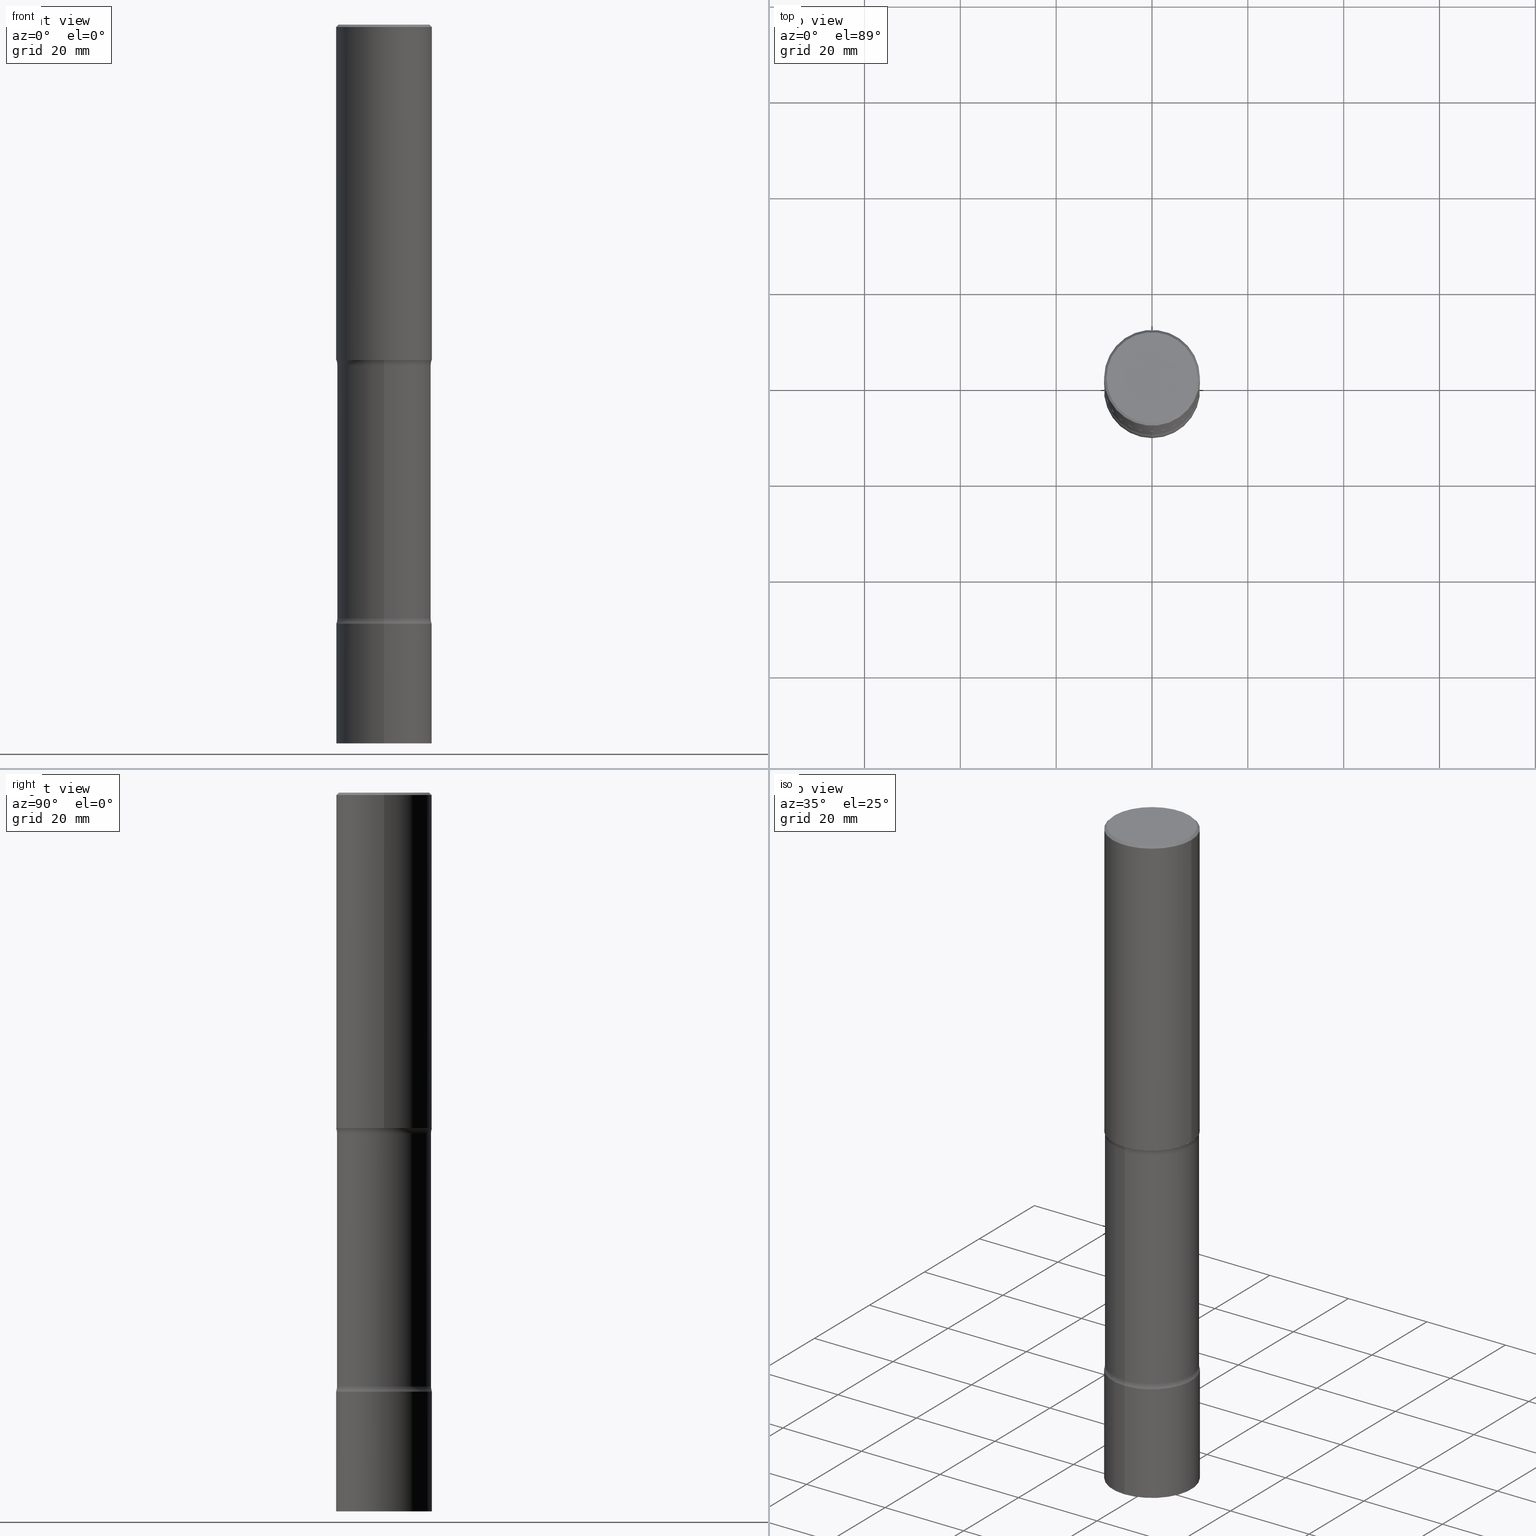
[diagram: canonical four-view strip — front | top / right | iso, engineering-drawing reading convention]
A machine part, canonical four-view strip (front | top / right | iso — engineering-drawing reading convention). The complete STEP part file that produces these views, byte-faithful:
ISO-10303-21;
HEADER;
FILE_DESCRIPTION (( 'STEP AP203' ),
    '1' );
FILE_NAME ('44566.STEP',
    '2024-03-11T13:34:38',
    ( '' ),
    ( '' ),
    'SwSTEP 2.0',
    'SolidWorks 2023',
    '' );
FILE_SCHEMA (( 'CONFIG_CONTROL_DESIGN' ));
ENDSEC;

DATA;
#1 = EDGE_LOOP ( 'NONE', ( #374, #477, #432, #218 ) ) ;
#2 = CC_DESIGN_PERSON_AND_ORGANIZATION_ASSIGNMENT ( #80, #114, ( #86 ) ) ;
#3 = APPROVAL_DATE_TIME ( #127, #139 ) ;
#4 = CARTESIAN_POINT ( 'NONE',  ( 6.498622885665502383E-29, -1.026532838434027819E-14, -2.798546805273080640 ) ) ;
#5 = CIRCLE ( 'NONE', #21, 0.3937000000000000499 ) ;
#6 = DIRECTION ( 'NONE',  ( 1.000000000000000000, -6.982962677686265922E-15, 4.876176775795935793E-29 ) ) ;
#7 = ORIENTED_EDGE ( 'NONE', *, *, #209, .F. ) ;
#8 = DIRECTION ( 'NONE',  ( 1.000000000000000000, -6.982962677686266711E-15, 4.876176775795935793E-29 ) ) ;
#9 = ADVANCED_FACE ( 'NONE', ( #100 ), #490, .T. ) ;
#10 = ORIENTED_EDGE ( 'NONE', *, *, #204, .F. ) ;
#11 = DIRECTION ( 'NONE',  ( -6.982962677686269077E-15, -1.000000000000000000, 0.000000000000000000 ) ) ;
#12 = VERTEX_POINT ( 'NONE', #443 ) ;
#13 = CARTESIAN_POINT ( 'NONE',  ( 1.444498222828701808E-28, -2.061426567174549713E-14, -5.905499999999999972 ) ) ;
#14 = AXIS2_PLACEMENT_3D ( 'NONE', #227, #375, #106 ) ;
#15 = AXIS2_PLACEMENT_3D ( 'NONE', #384, #501, #77 ) ;
#16 = ORIENTED_EDGE ( 'NONE', *, *, #271, .T. ) ;
#17 = ADVANCED_FACE ( 'NONE', ( #353 ), #342, .F. ) ;
#18 = FACE_OUTER_BOUND ( 'NONE', #102, .T. ) ;
#19 = CARTESIAN_POINT ( 'NONE',  ( -2.749192406204938461E-15, -0.3937000000000206446, -5.905499999999998195 ) ) ;
#20 = DIRECTION ( 'NONE',  ( -2.446021882700367248E-29, 3.490689301794175043E-15, 1.000000000000000000 ) ) ;
#21 = AXIS2_PLACEMENT_3D ( 'NONE', #327, #396, #398 ) ;
#22 = CIRCLE ( 'NONE', #89, 0.3937000000000000499 ) ;
#23 = DIRECTION ( 'NONE',  ( 2.609347592550137180E-29, -3.256797589367199475E-15, -1.000000000000000000 ) ) ;
#24 = EDGE_LOOP ( 'NONE', ( #157, #211, #506, #16 ) ) ;
#25 = CARTESIAN_POINT ( 'NONE',  ( 4.890937612370298557E-31, -6.982962677686327354E-17, -0.02000000000000010103 ) ) ;
#26 = EDGE_LOOP ( 'NONE', ( #394, #234, #361, #406 ) ) ;
#27 = PERSON_AND_ORGANIZATION ( #499, #366 ) ;
#28 = ORIENTED_EDGE ( 'NONE', *, *, #156, .F. ) ;
#29 = AXIS2_PLACEMENT_3D ( 'NONE', #281, #236, #162 ) ;
#30 = PERSON_AND_ORGANIZATION_ROLE ( 'design_owner' ) ;
#31 = FACE_OUTER_BOUND ( 'NONE', #205, .T. ) ;
#32 = APPLICATION_CONTEXT ( 'configuration controlled 3d designs of mechanical parts and assemblies' ) ;
#33 = CALENDAR_DATE ( 2024, 11, 3 ) ;
#34 = DIRECTION ( 'NONE',  ( 1.000000000000000000, -6.982962677686267499E-15, 0.000000000000000000 ) ) ;
#35 = PERSON_AND_ORGANIZATION ( #499, #366 ) ;
#36 = CARTESIAN_POINT ( 'NONE',  ( -3.507086576460688955E-15, -0.5112000000000173072, -4.878553194726919173 ) ) ;
#37 = ORIENTED_EDGE ( 'NONE', *, *, #60, .F. ) ;
#38 = AXIS2_PLACEMENT_3D ( 'NONE', #256, #292, #6 ) ;
#39 = CC_DESIGN_SECURITY_CLASSIFICATION ( #153, ( #299 ) ) ;
#40 =( CONVERSION_BASED_UNIT ( 'INCH', #194 ) LENGTH_UNIT ( ) NAMED_UNIT ( #427 ) );
#41 = DIRECTION ( 'NONE',  ( 6.982962677686265922E-15, 1.000000000000000000, -2.775563112689112751E-15 ) ) ;
#42 = PRODUCT_RELATED_PRODUCT_CATEGORY ( 'detail', '', ( #290 ) ) ;
#43 = VERTEX_POINT ( 'NONE', #200 ) ;
#44 = CARTESIAN_POINT ( 'NONE',  ( 6.739467482965615990E-29, -9.622173421717821235E-15, -2.755899999999998684 ) ) ;
#45 = EDGE_CURVE ( 'NONE', #454, #265, #128, .T. ) ;
#46 = DIRECTION ( 'NONE',  ( -2.446021882700367248E-29, 3.490689301794175043E-15, 1.000000000000000000 ) ) ;
#47 = VECTOR ( 'NONE', #217, 39.37007874015748143 ) ;
#48 = ADVANCED_FACE ( 'NONE', ( #497 ), #505, .T. ) ;
#49 = DIRECTION ( 'NONE',  ( 2.609347592550137180E-29, -3.256797589367199475E-15, -1.000000000000000000 ) ) ;
#50 = CC_DESIGN_APPROVAL ( #139, ( #153 ) ) ;
#51 = ORIENTED_EDGE ( 'NONE', *, *, #393, .T. ) ;
#52 = CARTESIAN_POINT ( 'NONE',  ( 4.890937612370298557E-31, -6.982962677686327354E-17, -0.02000000000000010103 ) ) ;
#53 = EDGE_LOOP ( 'NONE', ( #365, #287, #330, #87 ) ) ;
#54 = DIRECTION ( 'NONE',  ( -2.445468806185136597E-29, 3.491481338843145583E-15, 1.000000000000000000 ) ) ;
#55 = ORIENTED_EDGE ( 'NONE', *, *, #190, .T. ) ;
#56 = CARTESIAN_POINT ( 'NONE',  ( 3.569690520833339777E-15, 0.5111999999999831124, -4.878553194726922726 ) ) ;
#57 = AXIS2_PLACEMENT_3D ( 'NONE', #424, #395, #41 ) ;
#58 = LOCAL_TIME ( 9, 34, 38.00000000000000000, #421 ) ;
#59 = AXIS2_PLACEMENT_3D ( 'NONE', #255, #182, #295 ) ;
#60 = EDGE_CURVE ( 'NONE', #132, #378, #108, .T. ) ;
#61 = EDGE_CURVE ( 'NONE', #265, #454, #409, .T. ) ;
#62 = DIRECTION ( 'NONE',  ( 2.609347592550136619E-29, -3.256797589367199475E-15, -1.000000000000000000 ) ) ;
#63 = CARTESIAN_POINT ( 'NONE',  ( 0.000000000000000000, 0.000000000000000000, 0.000000000000000000 ) ) ;
#64 = ADVANCED_BREP_SHAPE_REPRESENTATION ( '44566', ( #354, #357, #199, #485 ), #503 ) ;
#65 = DIRECTION ( 'NONE',  ( 6.982962677686265922E-15, 1.000000000000000000, -3.256797589367199475E-15 ) ) ;
#66 = CC_DESIGN_PERSON_AND_ORGANIZATION_ASSIGNMENT ( #76, #344, ( #299 ) ) ;
#67 = ORIENTED_EDGE ( 'NONE', *, *, #469, .F. ) ;
#68 = TOROIDAL_SURFACE ( 'NONE', #475, 0.5112000000000002098, 0.1249999999999998335 ) ;
#69 = AXIS2_PLACEMENT_3D ( 'NONE', #103, #62, #65 ) ;
#70 = CARTESIAN_POINT ( 'NONE',  ( -2.700978061722591693E-15, -0.3937000000000107636, -2.755899999999998684 ) ) ;
#71 = ORIENTED_EDGE ( 'NONE', *, *, #280, .T. ) ;
#72 = ADVANCED_FACE ( 'NONE', ( #31 ), #134, .T. ) ;
#73 = LINE ( 'NONE', #104, #429 ) ;
#74 = EDGE_LOOP ( 'NONE', ( #343, #109, #246, #282 ) ) ;
#75 = ADVANCED_FACE ( 'NONE', ( #314 ), #198, .F. ) ;
#76 = PERSON_AND_ORGANIZATION ( #499, #366 ) ;
#77 = DIRECTION ( 'NONE',  ( 1.000000000000000000, -6.982962677686266711E-15, 4.876176775795935793E-29 ) ) ;
#78 = AXIS2_PLACEMENT_3D ( 'NONE', #210, #328, #252 ) ;
#79 = AXIS2_PLACEMENT_3D ( 'NONE', #412, #300, #417 ) ;
#80 = PERSON_AND_ORGANIZATION ( #499, #366 ) ;
#81 = DIRECTION ( 'NONE',  ( 6.982962677686265922E-15, 1.000000000000000000, -2.829464519590118922E-15 ) ) ;
#82 = APPLICATION_PROTOCOL_DEFINITION ( 'international standard', 'config_control_design', 1994, #32 ) ;
#83 = PLANE ( 'NONE',  #285 ) ;
#84 =( LENGTH_UNIT ( ) NAMED_UNIT ( * ) SI_UNIT ( $, .METRE. ) );
#85 = CARTESIAN_POINT ( 'NONE',  ( -0.3936999999999999389, 2.797406750687513998E-15, -1.936584745033356455E-29 ) ) ;
#86 = PRODUCT_DEFINITION ( 'UNKNOWN', '', #299, #318 ) ;
#87 = ORIENTED_EDGE ( 'NONE', *, *, #135, .F. ) ;
#88 = CIRCLE ( 'NONE', #458, 0.1250000000000000278 ) ;
#89 = AXIS2_PLACEMENT_3D ( 'NONE', #191, #111, #261 ) ;
#90 = CARTESIAN_POINT ( 'NONE',  ( -2.675251194230891005E-15, -0.3862000000000175293, -4.878553194726920061 ) ) ;
#91 = ORIENTED_EDGE ( 'NONE', *, *, #105, .T. ) ;
#92 = DIRECTION ( 'NONE',  ( -1.000000000000000000, 6.982962677686265922E-15, -4.883557194083112340E-29 ) ) ;
#93 = VERTEX_POINT ( 'NONE', #90 ) ;
#94 = CARTESIAN_POINT ( 'NONE',  ( 0.000000000000000000, 0.000000000000000000, 0.000000000000000000 ) ) ;
#95 = UNCERTAINTY_MEASURE_WITH_UNIT (LENGTH_MEASURE( 1.000000000000000082E-05 ), #40, 'distance_accuracy_value', 'NONE');
#96 = CIRCLE ( 'NONE', #250, 0.1250000000000000278 ) ;
#97 = LINE ( 'NONE', #331, #145 ) ;
#98 = EDGE_LOOP ( 'NONE', ( #37, #216 ) ) ;
#99 = CARTESIAN_POINT ( 'NONE',  ( -2.749192406205082822E-15, -0.3937000000000000499, 1.374284378116366922E-15 ) ) ;
#100 = FACE_OUTER_BOUND ( 'NONE', #167, .T. ) ;
#101 = LINE ( 'NONE', #249, #47 ) ;
#102 = EDGE_LOOP ( 'NONE', ( #473, #244 ) ) ;
#103 = CARTESIAN_POINT ( 'NONE',  ( 1.398077560322116066E-29, -1.727134780397775746E-14, -2.755899999999999572 ) ) ;
#104 = CARTESIAN_POINT ( 'NONE',  ( 0.3936999999999999389, -2.749192406205082822E-15, 1.919750796630859611E-29 ) ) ;
#105 = EDGE_CURVE ( 'NONE', #437, #43, #379, .T. ) ;
#106 = DIRECTION ( 'NONE',  ( -1.000000000000000000, 6.982962677686265922E-15, -4.876176775795935793E-29 ) ) ;
#107 = CARTESIAN_POINT ( 'NONE',  ( 1.203464108899829604E-28, -1.718227796471488830E-14, -4.921200000000000685 ) ) ;
#108 = CIRCLE ( 'NONE', #452, 0.3937000000000000499 ) ;
#109 = ORIENTED_EDGE ( 'NONE', *, *, #204, .T. ) ;
#110 = AXIS2_PLACEMENT_3D ( 'NONE', #107, #370, #305 ) ;
#111 = DIRECTION ( 'NONE',  ( 2.609347592550137180E-29, -3.256797589367199475E-15, -1.000000000000000000 ) ) ;
#112 = EDGE_LOOP ( 'NONE', ( #257, #470 ) ) ;
#113 = EDGE_CURVE ( 'NONE', #378, #132, #465, .T. ) ;
#114 = PERSON_AND_ORGANIZATION_ROLE ( 'creator' ) ;
#115 = CARTESIAN_POINT ( 'NONE',  ( 6.462231063326994910E-29, -1.031744354522291555E-14, -2.798546805273080640 ) ) ;
#116 = CARTESIAN_POINT ( 'NONE',  ( 1.192608255047578454E-28, -1.703948817938191787E-14, -4.878553194726920950 ) ) ;
#117 = TOROIDAL_SURFACE ( 'NONE', #78, 0.5112000000000004318, 0.1250000000000000555 ) ;
#118 = AXIS2_PLACEMENT_3D ( 'NONE', #260, #20, #187 ) ;
#119 = EDGE_CURVE ( 'NONE', #399, #397, #304, .T. ) ;
#120 = COORDINATED_UNIVERSAL_TIME_OFFSET ( 5, 0, .BEHIND. ) ;
#121 = DIRECTION ( 'NONE',  ( 6.982962677686265922E-15, 1.000000000000000000, -2.829464519590119711E-15 ) ) ;
#122 = EDGE_CURVE ( 'NONE', #378, #430, #160, .T. ) ;
#123 = CARTESIAN_POINT ( 'NONE',  ( -3.507086576460744569E-15, -0.5112000000000107569, -2.798546805273078864 ) ) ;
#124 = DIRECTION ( 'NONE',  ( 2.609347592550137180E-29, -3.256797589367199475E-15, -1.000000000000000000 ) ) ;
#125 = ORIENTED_EDGE ( 'NONE', *, *, #251, .T. ) ;
#126 = AXIS2_PLACEMENT_3D ( 'NONE', #56, #474, #362 ) ;
#127 = DATE_AND_TIME ( #312, #467 ) ;
#128 = CIRCLE ( 'NONE', #179, 0.3862000000000003763 ) ;
#129 = CARTESIAN_POINT ( 'NONE',  ( 0.3936999999999998279, -2.770807688499514156E-15, -0.02000000000000010103 ) ) ;
#130 = SHAPE_DEFINITION_REPRESENTATION ( #269, #64 ) ;
#131 = FACE_OUTER_BOUND ( 'NONE', #177, .T. ) ;
#132 = VERTEX_POINT ( 'NONE', #270 ) ;
#133 = CARTESIAN_POINT ( 'NONE',  ( 3.569690520833286924E-15, 0.5111999999999901068, -2.798546805273081972 ) ) ;
#134 = CONICAL_SURFACE ( 'NONE', #29, 0.3936999999999998279, 0.7853981633974471688 ) ;
#135 = EDGE_CURVE ( 'NONE', #93, #293, #405, .T. ) ;
#136 = CIRCLE ( 'NONE', #118, 0.3937000000000000499 ) ;
#137 = DIRECTION ( 'NONE',  ( 2.609347592550137180E-29, -3.256797589367199475E-15, -1.000000000000000000 ) ) ;
#138 = ORIENTED_EDGE ( 'NONE', *, *, #468, .T. ) ;
#139 = APPROVAL ( #161, 'UNSPECIFIED' ) ;
#140 = CARTESIAN_POINT ( 'NONE',  ( 1.460574372449214127E-28, -2.038404605920362391E-14, -5.905499999999998195 ) ) ;
#141 = ORIENTED_EDGE ( 'NONE', *, *, #122, .F. ) ;
#142 = DIRECTION ( 'NONE',  ( 1.000000000000000000, -6.982962677686266711E-15, 4.876212485538978481E-29 ) ) ;
#143 = EDGE_CURVE ( 'NONE', #149, #93, #275, .T. ) ;
#144 = DIRECTION ( 'NONE',  ( 6.982962677686265922E-15, 1.000000000000000000, -3.256797589367199475E-15 ) ) ;
#145 = VECTOR ( 'NONE', #479, 39.37007874015748143 ) ;
#146 = LOCAL_TIME ( 9, 34, 38.00000000000000000, #159 ) ;
#147 = CARTESIAN_POINT ( 'NONE',  ( -2.087702828670439639E-46, 2.980686340760894400E-32, 8.537024980200822558E-18 ) ) ;
#148 = FACE_OUTER_BOUND ( 'NONE', #26, .T. ) ;
#149 = VERTEX_POINT ( 'NONE', #241 ) ;
#150 = ADVANCED_FACE ( 'NONE', ( #460 ), #83, .T. ) ;
#151 = VERTEX_POINT ( 'NONE', #462 ) ;
#152 = CONICAL_SURFACE ( 'NONE', #451, 0.3936999999999998279, 0.7853981633974471688 ) ;
#153 = SECURITY_CLASSIFICATION ( '', '', #507 ) ;
#154 = CLOSED_SHELL ( 'NONE', ( #178, #442, #17, #215, #478, #75, #320, #229 ) ) ;
#155 = DATE_TIME_ROLE ( 'creation_date' ) ;
#156 = EDGE_CURVE ( 'NONE', #265, #397, #96, .T. ) ;
#157 = ORIENTED_EDGE ( 'NONE', *, *, #143, .F. ) ;
#158 = EDGE_CURVE ( 'NONE', #454, #293, #321, .T. ) ;
#159 = COORDINATED_UNIVERSAL_TIME_OFFSET ( 5, 0, .BEHIND. ) ;
#160 = LINE ( 'NONE', #85, #445 ) ;
#161 = APPROVAL_STATUS ( 'not_yet_approved' ) ;
#162 = DIRECTION ( 'NONE',  ( -1.000000000000000000, 6.982962677686266711E-15, 0.000000000000000000 ) ) ;
#163 = CC_DESIGN_APPROVAL ( #498, ( #299 ) ) ;
#164 = CC_DESIGN_PERSON_AND_ORGANIZATION_ASSIGNMENT ( #377, #30, ( #290 ) ) ;
#165 = PERSON_AND_ORGANIZATION ( #499, #366 ) ;
#166 = DIRECTION ( 'NONE',  ( 6.982962677686265922E-15, 1.000000000000000000, -3.490689301794175043E-15 ) ) ;
#167 = EDGE_LOOP ( 'NONE', ( #10, #208, #403, #487 ) ) ;
#168 = DIRECTION ( 'NONE',  ( 1.000000000000000000, 0.000000000000000000, 0.000000000000000000 ) ) ;
#169 = DIRECTION ( 'NONE',  ( 6.860497997771532351E-15, 1.000000000000000000, 0.000000000000000000 ) ) ;
#170 = ORIENTED_EDGE ( 'NONE', *, *, #324, .F. ) ;
#171 = DIRECTION ( 'NONE',  ( 2.609347592550137180E-29, -3.256797589367199475E-15, -1.000000000000000000 ) ) ;
#172 = AXIS2_PLACEMENT_3D ( 'NONE', #317, #423, #245 ) ;
#173 = AXIS2_PLACEMENT_3D ( 'NONE', #338, #410, #266 ) ;
#174 = DIRECTION ( 'NONE',  ( 6.982962677686265922E-15, 1.000000000000000000, -2.775563112689112751E-15 ) ) ;
#175 = CARTESIAN_POINT ( 'NONE',  ( 1.192608255047578454E-28, -1.703948817938191787E-14, -4.878553194726920950 ) ) ;
#176 = VERTEX_POINT ( 'NONE', #428 ) ;
#177 = EDGE_LOOP ( 'NONE', ( #440, #326, #7, #67 ) ) ;
#178 = ADVANCED_FACE ( 'NONE', ( #207 ), #400, .T. ) ;
#179 = AXIS2_PLACEMENT_3D ( 'NONE', #4, #347, #121 ) ;
#180 = CIRCLE ( 'NONE', #126, 0.1249999999999998335 ) ;
#181 = DIRECTION ( 'NONE',  ( 6.982962677686265922E-15, 1.000000000000000000, -2.829464519590119711E-15 ) ) ;
#182 = DIRECTION ( 'NONE',  ( -2.446021882700367248E-29, 3.490689301794175043E-15, 1.000000000000000000 ) ) ;
#183 = CARTESIAN_POINT ( 'NONE',  ( -0.3936999999999998279, 2.679362779428218735E-15, -0.02000000000000010103 ) ) ;
#184 = DIRECTION ( 'NONE',  ( -1.000000000000000000, 6.982962677686266711E-15, 0.000000000000000000 ) ) ;
#185 = EDGE_CURVE ( 'NONE', #480, #43, #439, .T. ) ;
#186 = AXIS2_PLACEMENT_3D ( 'NONE', #116, #284, #81 ) ;
#187 = DIRECTION ( 'NONE',  ( -6.982962677686265133E-15, -1.000000000000000000, 2.775563112689116301E-15 ) ) ;
#188 = FACE_OUTER_BOUND ( 'NONE', #74, .T. ) ;
#189 = ORIENTED_EDGE ( 'NONE', *, *, #113, .T. ) ;
#190 = EDGE_CURVE ( 'NONE', #43, #437, #5, .T. ) ;
#191 = CARTESIAN_POINT ( 'NONE',  ( 1.203736288914504850E-28, -1.717838019198949661E-14, -4.921200000000000685 ) ) ;
#192 = ORIENTED_EDGE ( 'NONE', *, *, #271, .F. ) ;
#193 = EDGE_CURVE ( 'NONE', #339, #195, #101, .T. ) ;
#194 = LENGTH_MEASURE_WITH_UNIT ( LENGTH_MEASURE( 0.02539999999999999897 ), #84 );
#195 = VERTEX_POINT ( 'NONE', #129 ) ;
#196 = AXIS2_PLACEMENT_3D ( 'NONE', #329, #137, #181 ) ;
#197 = APPLICATION_PROTOCOL_DEFINITION ( 'international standard', 'config_control_design', 1994, #433 ) ;
#198 = PLANE ( 'NONE',  #212 ) ;
#199 = MANIFOLD_SOLID_BREP ( 'Body-Move/Copy2[4]', #154 ) ;
#200 = CARTESIAN_POINT ( 'NONE',  ( -2.749192406204962521E-15, -0.3937000000000172584, -4.921199999999998909 ) ) ;
#201 = CALENDAR_DATE ( 2024, 11, 3 ) ;
#202 = CARTESIAN_POINT ( 'NONE',  ( 2.995880486404522256E-29, -3.701003100852377364E-14, -5.905499999999998195 ) ) ;
#203 = AXIS2_PLACEMENT_3D ( 'NONE', #94, #360, #8 ) ;
#204 = EDGE_CURVE ( 'NONE', #176, #437, #97, .T. ) ;
#205 = EDGE_LOOP ( 'NONE', ( #267, #401, #418, #125 ) ) ;
#206 = DIRECTION ( 'NONE',  ( 6.982962677686265922E-15, 1.000000000000000000, -2.829464519590119711E-15 ) ) ;
#207 = FACE_OUTER_BOUND ( 'NONE', #303, .T. ) ;
#208 = ORIENTED_EDGE ( 'NONE', *, *, #235, .T. ) ;
#209 = EDGE_CURVE ( 'NONE', #195, #430, #340, .T. ) ;
#210 = CARTESIAN_POINT ( 'NONE',  ( 6.462231063326994910E-29, -1.031744354522291555E-14, -2.798546805273080640 ) ) ;
#211 = ORIENTED_EDGE ( 'NONE', *, *, #468, .F. ) ;
#212 = AXIS2_PLACEMENT_3D ( 'NONE', #382, #345, #508 ) ;
#213 = TOROIDAL_SURFACE ( 'NONE', #173, 0.5112000000000002098, 0.1249999999999998335 ) ;
#214 = CYLINDRICAL_SURFACE ( 'NONE', #203, 0.3936999999999999389 ) ;
#215 = ADVANCED_FACE ( 'NONE', ( #254 ), #117, .F. ) ;
#216 = ORIENTED_EDGE ( 'NONE', *, *, #113, .F. ) ;
#217 = DIRECTION ( 'NONE',  ( 0.7071067811865466846, -7.319954787623252890E-15, -0.7071067811865483499 ) ) ;
#218 = ORIENTED_EDGE ( 'NONE', *, *, #280, .F. ) ;
#219 = DIRECTION ( 'NONE',  ( 2.609347592550137180E-29, -3.256797589367199475E-15, -1.000000000000000000 ) ) ;
#220 = ORIENTED_EDGE ( 'NONE', *, *, #251, .F. ) ;
#221 = ADVANCED_FACE ( 'NONE', ( #355 ), #441, .F. ) ;
#222 = CIRCLE ( 'NONE', #372, 0.3736999999999997546 ) ;
#223 = CYLINDRICAL_SURFACE ( 'NONE', #196, 0.3862000000000003763 ) ;
#224 = EDGE_CURVE ( 'NONE', #397, #399, #502, .T. ) ;
#225 = DIRECTION ( 'NONE',  ( -6.982962677686265133E-15, -1.000000000000000000, 3.490689301794175043E-15 ) ) ;
#226 = VECTOR ( 'NONE', #46, 39.37007874015748143 ) ;
#227 = CARTESIAN_POINT ( 'NONE',  ( 2.609533152651355831E-15, 0.3736999999999997546, -1.300498063835582419E-15 ) ) ;
#228 = ORIENTED_EDGE ( 'NONE', *, *, #469, .T. ) ;
#229 = ADVANCED_FACE ( 'NONE', ( #435 ), #223, .T. ) ;
#230 = CARTESIAN_POINT ( 'NONE',  ( 1.188265867556735295E-28, -1.710167363978426174E-14, -4.878553194726920950 ) ) ;
#231 = EDGE_LOOP ( 'NONE', ( #28, #322, #71, #253 ) ) ;
#232 = CC_DESIGN_PERSON_AND_ORGANIZATION_ASSIGNMENT ( #27, #419, ( #299 ) ) ;
#233 = DIRECTION ( 'NONE',  ( -2.445468806185136877E-29, 3.491481338843145188E-15, 1.000000000000000000 ) ) ;
#234 = ORIENTED_EDGE ( 'NONE', *, *, #143, .T. ) ;
#235 = EDGE_CURVE ( 'NONE', #176, #480, #414, .T. ) ;
#236 = DIRECTION ( 'NONE',  ( 2.445468806185136597E-29, -3.491481338843145583E-15, -1.000000000000000000 ) ) ;
#237 = APPROVAL_PERSON_ORGANIZATION ( #385, #264, #493 ) ;
#238 = PERSON_AND_ORGANIZATION_ROLE ( 'classification_officer' ) ;
#239 = DIRECTION ( 'NONE',  ( 6.860497997771531562E-15, 1.000000000000000000, 0.000000000000000000 ) ) ;
#240 = DIRECTION ( 'NONE',  ( 2.609347592550137180E-29, -3.256797589367199475E-15, -1.000000000000000000 ) ) ;
#241 = CARTESIAN_POINT ( 'NONE',  ( -2.700978061722532529E-15, -0.3937000000000173139, -4.921199999999999797 ) ) ;
#242 = AXIS2_PLACEMENT_3D ( 'NONE', #52, #294, #431 ) ;
#243 = EDGE_CURVE ( 'NONE', #12, #293, #180, .T. ) ;
#244 = ORIENTED_EDGE ( 'NONE', *, *, #224, .F. ) ;
#245 = DIRECTION ( 'NONE',  ( -6.982962677686265133E-15, -1.000000000000000000, 4.163344669033674845E-15 ) ) ;
#246 = ORIENTED_EDGE ( 'NONE', *, *, #190, .F. ) ;
#247 = CARTESIAN_POINT ( 'NONE',  ( 2.696820186122558805E-15, 0.3861999999999835009, -4.878553194726921838 ) ) ;
#248 = ORIENTED_EDGE ( 'NONE', *, *, #393, .F. ) ;
#249 = CARTESIAN_POINT ( 'NONE',  ( 0.3936999999999998279, -2.770807688499514156E-15, -0.02000000000000010103 ) ) ;
#250 = AXIS2_PLACEMENT_3D ( 'NONE', #123, #351, #169 ) ;
#251 = EDGE_CURVE ( 'NONE', #430, #195, #484, .T. ) ;
#252 = DIRECTION ( 'NONE',  ( 6.982962677686265922E-15, 1.000000000000000000, -3.256797589367199475E-15 ) ) ;
#253 = ORIENTED_EDGE ( 'NONE', *, *, #119, .T. ) ;
#254 = FACE_OUTER_BOUND ( 'NONE', #231, .T. ) ;
#255 = CARTESIAN_POINT ( 'NONE',  ( 0.000000000000000000, 0.000000000000000000, 0.000000000000000000 ) ) ;
#256 = CARTESIAN_POINT ( 'NONE',  ( 6.739467482965615990E-29, -9.622173421717821235E-15, -2.755899999999998684 ) ) ;
#257 = ORIENTED_EDGE ( 'NONE', *, *, #494, .F. ) ;
#258 = APPROVAL_PERSON_ORGANIZATION ( #165, #139, #389 ) ;
#259 = CARTESIAN_POINT ( 'NONE',  ( 2.696820186122503191E-15, 0.3861999999999901068, -2.798546805273081528 ) ) ;
#260 = CARTESIAN_POINT ( 'NONE',  ( 1.444498222828701808E-28, -2.061426567174549713E-14, -5.905499999999999972 ) ) ;
#261 = DIRECTION ( 'NONE',  ( 6.982962677686265133E-15, 1.000000000000000000, -2.775563112689116301E-15 ) ) ;
#262 = VECTOR ( 'NONE', #481, 39.37007874015748143 ) ;
#263 = CYLINDRICAL_SURFACE ( 'NONE', #491, 0.3937000000000000499 ) ;
#264 = APPROVAL ( #455, 'UNSPECIFIED' ) ;
#265 = VERTEX_POINT ( 'NONE', #466 ) ;
#266 = DIRECTION ( 'NONE',  ( 6.982962677686265922E-15, 1.000000000000000000, -3.256797589367199475E-15 ) ) ;
#267 = ORIENTED_EDGE ( 'NONE', *, *, #193, .F. ) ;
#268 = COORDINATED_UNIVERSAL_TIME_OFFSET ( 5, 0, .BEHIND. ) ;
#269 = PRODUCT_DEFINITION_SHAPE ( 'NONE', 'NONE',  #86 ) ;
#270 = CARTESIAN_POINT ( 'NONE',  ( 0.3937000000000000499, -1.237136582792290445E-14, -2.755899999999998684 ) ) ;
#271 = EDGE_CURVE ( 'NONE', #293, #93, #436, .T. ) ;
#272 = CARTESIAN_POINT ( 'NONE',  ( 0.000000000000000000, 0.000000000000000000, 0.000000000000000000 ) ) ;
#273 = AXIS2_PLACEMENT_3D ( 'NONE', #36, #309, #239 ) ;
#274 = DIRECTION ( 'NONE',  ( -2.445468806185136597E-29, 3.491481338843145583E-15, 1.000000000000000000 ) ) ;
#275 = CIRCLE ( 'NONE', #273, 0.1249999999999998335 ) ;
#276 = LOCAL_TIME ( 9, 34, 38.00000000000000000, #120 ) ;
#277 = CALENDAR_DATE ( 2024, 11, 3 ) ;
#278 = CARTESIAN_POINT ( 'NONE',  ( 6.498622885665502383E-29, -1.026532838434027819E-14, -2.798546805273080640 ) ) ;
#279 = COORDINATED_UNIVERSAL_TIME_OFFSET ( 5, 0, .BEHIND. ) ;
#280 = EDGE_CURVE ( 'NONE', #454, #399, #88, .T. ) ;
#281 = CARTESIAN_POINT ( 'NONE',  ( 4.890937612370298557E-31, -6.982962677686327354E-17, -0.02000000000000010103 ) ) ;
#282 = ORIENTED_EDGE ( 'NONE', *, *, #185, .F. ) ;
#283 = MECHANICAL_CONTEXT ( 'NONE', #32, 'mechanical' ) ;
#284 = DIRECTION ( 'NONE',  ( 2.609347592550137180E-29, -3.256797589367199475E-15, -1.000000000000000000 ) ) ;
#285 = AXIS2_PLACEMENT_3D ( 'NONE', #202, #349, #166 ) ;
#286 = DIRECTION ( 'NONE',  ( 2.609347592550137180E-29, -3.256797589367199475E-15, -1.000000000000000000 ) ) ;
#287 = ORIENTED_EDGE ( 'NONE', *, *, #61, .T. ) ;
#288 = DIRECTION ( 'NONE',  ( 6.982962677686265922E-15, 1.000000000000000000, -2.829464519590119711E-15 ) ) ;
#289 = FACE_OUTER_BOUND ( 'NONE', #24, .T. ) ;
#290 = PRODUCT ( '44566', '44566', '', ( #283 ) ) ;
#291 = AXIS2_PLACEMENT_3D ( 'NONE', #147, #486, #446 ) ;
#292 = DIRECTION ( 'NONE',  ( -2.438088387897960049E-29, 3.491481338843145188E-15, 1.000000000000000000 ) ) ;
#293 = VERTEX_POINT ( 'NONE', #247 ) ;
#294 = DIRECTION ( 'NONE',  ( -2.445468806185136597E-29, 3.491481338843145583E-15, 1.000000000000000000 ) ) ;
#295 = DIRECTION ( 'NONE',  ( -6.982962677686265133E-15, -1.000000000000000000, 3.490689301794175043E-15 ) ) ;
#296 = CARTESIAN_POINT ( 'NONE',  ( 2.797406750687659148E-15, 0.3936999999999828970, -4.921200000000002461 ) ) ;
#297 = EDGE_CURVE ( 'NONE', #265, #93, #471, .T. ) ;
#298 = AXIS2_PLACEMENT_3D ( 'NONE', #140, #286, #288 ) ;
#299 = PRODUCT_DEFINITION_FORMATION_WITH_SPECIFIED_SOURCE ( 'ANY', '', #290, .NOT_KNOWN. ) ;
#300 = DIRECTION ( 'NONE',  ( 2.609347592550137180E-29, -3.256797589367199475E-15, -1.000000000000000000 ) ) ;
#301 = CARTESIAN_POINT ( 'NONE',  ( -0.3936999999999998279, 2.679362779428218735E-15, -0.02000000000000010103 ) ) ;
#302 = FACE_OUTER_BOUND ( 'NONE', #387, .T. ) ;
#303 = EDGE_LOOP ( 'NONE', ( #363, #332, #192, #307 ) ) ;
#304 = CIRCLE ( 'NONE', #57, 0.3937000000000005495 ) ;
#305 = DIRECTION ( 'NONE',  ( 6.982962677686265922E-15, 1.000000000000000000, -3.490689301794175043E-15 ) ) ;
#306 = CIRCLE ( 'NONE', #291, 0.3736999999999997546 ) ;
#307 = ORIENTED_EDGE ( 'NONE', *, *, #158, .F. ) ;
#308 =( NAMED_UNIT ( * ) PLANE_ANGLE_UNIT ( ) SI_UNIT ( $, .RADIAN. ) );
#309 = DIRECTION ( 'NONE',  ( 1.000000000000000000, -6.860497997771530774E-15, 4.843672926650219335E-29 ) ) ;
#310 = CC_DESIGN_DATE_AND_TIME_ASSIGNMENT ( #316, #155, ( #86 ) ) ;
#311 = DIRECTION ( 'NONE',  ( 2.609347592550137180E-29, -3.256797589367199475E-15, -1.000000000000000000 ) ) ;
#312 = CALENDAR_DATE ( 2024, 11, 3 ) ;
#313 = AXIS2_PLACEMENT_3D ( 'NONE', #367, #171, #174 ) ;
#314 = FACE_OUTER_BOUND ( 'NONE', #319, .T. ) ;
#315 = ADVANCED_FACE ( 'NONE', ( #131 ), #214, .T. ) ;
#316 = DATE_AND_TIME ( #201, #146 ) ;
#317 = CARTESIAN_POINT ( 'NONE',  ( 1.203736288914504850E-28, -1.717838019198949661E-14, -4.921200000000000685 ) ) ;
#318 = DESIGN_CONTEXT ( 'detailed design', #433, 'design' ) ;
#319 = EDGE_LOOP ( 'NONE', ( #138, #376 ) ) ;
#320 = ADVANCED_FACE ( 'NONE', ( #289 ), #68, .F. ) ;
#321 = LINE ( 'NONE', #463, #325 ) ;
#322 = ORIENTED_EDGE ( 'NONE', *, *, #45, .F. ) ;
#323 = DIRECTION ( 'NONE',  ( 1.000000000000000000, -6.982962677686266711E-15, 0.000000000000000000 ) ) ;
#324 = EDGE_CURVE ( 'NONE', #151, #430, #489, .T. ) ;
#325 = VECTOR ( 'NONE', #124, 39.37007874015748143 ) ;
#326 = ORIENTED_EDGE ( 'NONE', *, *, #122, .T. ) ;
#327 = CARTESIAN_POINT ( 'NONE',  ( 1.203736288914504850E-28, -1.717838019198949661E-14, -4.921200000000000685 ) ) ;
#328 = DIRECTION ( 'NONE',  ( 2.609347592550137180E-29, -3.256797589367199475E-15, -1.000000000000000000 ) ) ;
#329 = CARTESIAN_POINT ( 'NONE',  ( 1.460574372449214127E-28, -2.038404605920362391E-14, -5.905499999999998195 ) ) ;
#330 = ORIENTED_EDGE ( 'NONE', *, *, #158, .T. ) ;
#331 = CARTESIAN_POINT ( 'NONE',  ( 2.797406750687513998E-15, 0.3937000000000000499, -1.374284378116366922E-15 ) ) ;
#332 = ORIENTED_EDGE ( 'NONE', *, *, #297, .T. ) ;
#333 = DIRECTION ( 'NONE',  ( -2.446021882700367248E-29, 3.490689301794175043E-15, 1.000000000000000000 ) ) ;
#334 = FACE_OUTER_BOUND ( 'NONE', #495, .T. ) ;
#335 = AXIS2_PLACEMENT_3D ( 'NONE', #175, #219, #472 ) ;
#336 = CARTESIAN_POINT ( 'NONE',  ( 0.3736999999999997546, -2.667287895133366781E-15, 8.537024980219274507E-18 ) ) ;
#337 = ORIENTED_EDGE ( 'NONE', *, *, #193, .T. ) ;
#338 = CARTESIAN_POINT ( 'NONE',  ( 1.188265867556735295E-28, -1.710167363978426174E-14, -4.878553194726920950 ) ) ;
#339 = VERTEX_POINT ( 'NONE', #336 ) ;
#340 = CIRCLE ( 'NONE', #242, 0.3936999999999998279 ) ;
#341 = CALENDAR_DATE ( 2024, 11, 3 ) ;
#342 = TOROIDAL_SURFACE ( 'NONE', #392, 0.5112000000000004318, 0.1250000000000000555 ) ;
#343 = ORIENTED_EDGE ( 'NONE', *, *, #494, .T. ) ;
#344 = PERSON_AND_ORGANIZATION_ROLE ( 'design_supplier' ) ;
#345 = DIRECTION ( 'NONE',  ( -2.609347592550136619E-29, 3.256797589367199475E-15, 1.000000000000000000 ) ) ;
#346 = DATE_AND_TIME ( #33, #407 ) ;
#347 = DIRECTION ( 'NONE',  ( 2.609347592550137180E-29, -3.256797589367199475E-15, -1.000000000000000000 ) ) ;
#348 = APPROVAL_ROLE ( '' ) ;
#349 = DIRECTION ( 'NONE',  ( 2.446021882700366968E-29, -3.490689301794175043E-15, -1.000000000000000000 ) ) ;
#350 = DIRECTION ( 'NONE',  ( 0.000000000000000000, 0.000000000000000000, 1.000000000000000000 ) ) ;
#351 = DIRECTION ( 'NONE',  ( 1.000000000000000000, -6.860497997771530774E-15, 4.843672926650219335E-29 ) ) ;
#352 = ADVANCED_FACE ( 'NONE', ( #302 ), #152, .T. ) ;
#353 = FACE_OUTER_BOUND ( 'NONE', #1, .T. ) ;
#354 = MANIFOLD_SOLID_BREP ( 'Body-Move/Copy2[1]', #356 ) ;
#355 = FACE_OUTER_BOUND ( 'NONE', #98, .T. ) ;
#356 = CLOSED_SHELL ( 'NONE', ( #381, #9, #368, #150 ) ) ;
#357 = MANIFOLD_SOLID_BREP ( 'Body-Move/Copy2[2]', #492 ) ;
#358 = CIRCLE ( 'NONE', #79, 0.3937000000000000499 ) ;
#359 = EDGE_LOOP ( 'NONE', ( #141, #189, #228, #220 ) ) ;
#360 = DIRECTION ( 'NONE',  ( -2.445468806185136597E-29, 3.491481338843145583E-15, 1.000000000000000000 ) ) ;
#361 = ORIENTED_EDGE ( 'NONE', *, *, #135, .T. ) ;
#362 = DIRECTION ( 'NONE',  ( -6.982962677686264344E-15, -1.000000000000000000, 0.000000000000000000 ) ) ;
#363 = ORIENTED_EDGE ( 'NONE', *, *, #45, .T. ) ;
#364 = DIRECTION ( 'NONE',  ( -2.446021882700367248E-29, 3.490689301794175043E-15, 1.000000000000000000 ) ) ;
#365 = ORIENTED_EDGE ( 'NONE', *, *, #297, .F. ) ;
#366 = ORGANIZATION ( 'UNSPECIFIED', 'UNSPECIFIED', '' ) ;
#367 = CARTESIAN_POINT ( 'NONE',  ( 6.387342546996236176E-29, -1.012643637173269629E-14, -2.755900000000000016 ) ) ;
#368 = ADVANCED_FACE ( 'NONE', ( #453 ), #411, .F. ) ;
#369 = CARTESIAN_POINT ( 'NONE',  ( 2.749192406205151059E-15, 0.3936999999999903910, -2.755900000000000905 ) ) ;
#370 = DIRECTION ( 'NONE',  ( 2.446021882700366968E-29, -3.490689301794175043E-15, -1.000000000000000000 ) ) ;
#371 = VECTOR ( 'NONE', #49, 39.37007874015748143 ) ;
#372 = AXIS2_PLACEMENT_3D ( 'NONE', #415, #373, #142 ) ;
#373 = DIRECTION ( 'NONE',  ( -2.445468806185136597E-29, 3.491481338843145583E-15, 1.000000000000000000 ) ) ;
#374 = ORIENTED_EDGE ( 'NONE', *, *, #61, .F. ) ;
#375 = DIRECTION ( 'NONE',  ( 2.438088387897960049E-29, -3.491481338843145188E-15, -1.000000000000000000 ) ) ;
#376 = ORIENTED_EDGE ( 'NONE', *, *, #408, .T. ) ;
#377 = PERSON_AND_ORGANIZATION ( #499, #366 ) ;
#378 = VERTEX_POINT ( 'NONE', #447 ) ;
#379 = CIRCLE ( 'NONE', #172, 0.3937000000000000499 ) ;
#380 = APPROVAL_DATE_TIME ( #504, #498 ) ;
#381 = ADVANCED_FACE ( 'NONE', ( #188 ), #263, .T. ) ;
#382 = CARTESIAN_POINT ( 'NONE',  ( 1.203464108899829604E-28, -1.718227796471488830E-14, -4.921200000000000685 ) ) ;
#383 = DATE_AND_TIME ( #277, #276 ) ;
#384 = CARTESIAN_POINT ( 'NONE',  ( 0.000000000000000000, 0.000000000000000000, 0.000000000000000000 ) ) ;
#385 = PERSON_AND_ORGANIZATION ( #499, #366 ) ;
#386 = DIRECTION ( 'NONE',  ( 6.982962677686265922E-15, 1.000000000000000000, -3.256797589367199475E-15 ) ) ;
#387 = EDGE_LOOP ( 'NONE', ( #248, #337, #450, #170 ) ) ;
#388 = AXIS2_PLACEMENT_3D ( 'NONE', #278, #240, #206 ) ;
#389 = APPROVAL_ROLE ( '' ) ;
#390 = AXIS2_PLACEMENT_3D ( 'NONE', #456, #391, #426 ) ;
#391 = DIRECTION ( 'NONE',  ( -2.445468806185136597E-29, 3.491481338843145583E-15, 1.000000000000000000 ) ) ;
#392 = AXIS2_PLACEMENT_3D ( 'NONE', #115, #311, #386 ) ;
#393 = EDGE_CURVE ( 'NONE', #339, #151, #222, .T. ) ;
#394 = ORIENTED_EDGE ( 'NONE', *, *, #408, .F. ) ;
#395 = DIRECTION ( 'NONE',  ( 2.609347592550137180E-29, -3.256797589367199475E-15, -1.000000000000000000 ) ) ;
#396 = DIRECTION ( 'NONE',  ( -2.446021882700367248E-29, 3.490689301794175043E-15, 1.000000000000000000 ) ) ;
#397 = VERTEX_POINT ( 'NONE', #70 ) ;
#398 = DIRECTION ( 'NONE',  ( -6.982962677686265133E-15, -1.000000000000000000, 4.163344669033674845E-15 ) ) ;
#399 = VERTEX_POINT ( 'NONE', #369 ) ;
#400 = CYLINDRICAL_SURFACE ( 'NONE', #298, 0.3862000000000003763 ) ;
#401 = ORIENTED_EDGE ( 'NONE', *, *, #413, .F. ) ;
#402 = CARTESIAN_POINT ( 'NONE',  ( 4.890937612370298557E-31, -6.982962677686327354E-17, -0.02000000000000010103 ) ) ;
#403 = ORIENTED_EDGE ( 'NONE', *, *, #185, .T. ) ;
#404 = DIRECTION ( 'NONE',  ( -6.982962677686265133E-15, -1.000000000000000000, 2.775563112689116301E-15 ) ) ;
#405 = CIRCLE ( 'NONE', #186, 0.3862000000000004873 ) ;
#406 = ORIENTED_EDGE ( 'NONE', *, *, #243, .F. ) ;
#407 = LOCAL_TIME ( 9, 34, 38.00000000000000000, #268 ) ;
#408 = EDGE_CURVE ( 'NONE', #149, #12, #22, .T. ) ;
#409 = CIRCLE ( 'NONE', #388, 0.3862000000000003763 ) ;
#410 = DIRECTION ( 'NONE',  ( 2.609347592550137180E-29, -3.256797589367199475E-15, -1.000000000000000000 ) ) ;
#411 = PLANE ( 'NONE',  #110 ) ;
#412 = CARTESIAN_POINT ( 'NONE',  ( 1.203736288914504850E-28, -1.717838019198949661E-14, -4.921200000000000685 ) ) ;
#413 = EDGE_CURVE ( 'NONE', #151, #339, #306, .T. ) ;
#414 = CIRCLE ( 'NONE', #420, 0.3937000000000000499 ) ;
#415 = CARTESIAN_POINT ( 'NONE',  ( -2.087702828670439639E-46, 2.980686340760894400E-32, 8.537024980200822558E-18 ) ) ;
#416 = EDGE_LOOP ( 'NONE', ( #55, #91 ) ) ;
#417 = DIRECTION ( 'NONE',  ( 6.982962677686265133E-15, 1.000000000000000000, -2.775563112689116301E-15 ) ) ;
#418 = ORIENTED_EDGE ( 'NONE', *, *, #324, .T. ) ;
#419 = PERSON_AND_ORGANIZATION_ROLE ( 'creator' ) ;
#420 = AXIS2_PLACEMENT_3D ( 'NONE', #13, #364, #404 ) ;
#421 = COORDINATED_UNIVERSAL_TIME_OFFSET ( 5, 0, .BEHIND. ) ;
#422 = APPROVAL_PERSON_ORGANIZATION ( #35, #498, #348 ) ;
#423 = DIRECTION ( 'NONE',  ( -2.446021882700367248E-29, 3.490689301794175043E-15, 1.000000000000000000 ) ) ;
#424 = CARTESIAN_POINT ( 'NONE',  ( 6.387342546996236176E-29, -1.012643637173269629E-14, -2.755900000000000016 ) ) ;
#425 = APPROVAL_STATUS ( 'not_yet_approved' ) ;
#426 = DIRECTION ( 'NONE',  ( 1.000000000000000000, -6.982962677686267499E-15, 0.000000000000000000 ) ) ;
#427 = DIMENSIONAL_EXPONENTS ( 1.000000000000000000, 0.000000000000000000, 0.000000000000000000, 0.000000000000000000, 0.000000000000000000, 0.000000000000000000, 0.000000000000000000 ) ;
#428 = CARTESIAN_POINT ( 'NONE',  ( 2.797406750687646526E-15, 0.3936999999999793998, -5.905500000000000860 ) ) ;
#429 = VECTOR ( 'NONE', #233, 39.37007874015748143 ) ;
#430 = VERTEX_POINT ( 'NONE', #301 ) ;
#431 = DIRECTION ( 'NONE',  ( 1.000000000000000000, -6.982962677686266711E-15, 0.000000000000000000 ) ) ;
#432 = ORIENTED_EDGE ( 'NONE', *, *, #224, .T. ) ;
#433 = APPLICATION_CONTEXT ( 'configuration controlled 3d designs of mechanical parts and assemblies' ) ;
#434 = CARTESIAN_POINT ( 'NONE',  ( -2.649524326739221477E-15, -0.3862000000000207489, -5.905499999999997307 ) ) ;
#435 = FACE_OUTER_BOUND ( 'NONE', #53, .T. ) ;
#436 = CIRCLE ( 'NONE', #335, 0.3862000000000004873 ) ;
#437 = VERTEX_POINT ( 'NONE', #296 ) ;
#438 = CC_DESIGN_DATE_AND_TIME_ASSIGNMENT ( #383, #500, ( #153 ) ) ;
#439 = LINE ( 'NONE', #99, #226 ) ;
#440 = ORIENTED_EDGE ( 'NONE', *, *, #60, .T. ) ;
#441 = PLANE ( 'NONE',  #38 ) ;
#442 = ADVANCED_FACE ( 'NONE', ( #148 ), #213, .F. ) ;
#443 = CARTESIAN_POINT ( 'NONE',  ( 2.749192406205203912E-15, 0.3936999999999828970, -4.921200000000001573 ) ) ;
#444 = PLANE ( 'NONE',  #69 ) ;
#445 = VECTOR ( 'NONE', #457, 39.37007874015748143 ) ;
#446 = DIRECTION ( 'NONE',  ( 1.000000000000000000, -6.982962677686266711E-15, 4.876212485538978481E-29 ) ) ;
#447 = CARTESIAN_POINT ( 'NONE',  ( -0.3937000000000000499, -2.048594773559825902E-15, -2.755899999999998684 ) ) ;
#448 = ADVANCED_FACE ( 'NONE', ( #334 ), #482, .F. ) ;
#449 = DIRECTION ( 'NONE',  ( 2.445468806185136597E-29, -3.491481338843145583E-15, -1.000000000000000000 ) ) ;
#450 = ORIENTED_EDGE ( 'NONE', *, *, #209, .T. ) ;
#451 = AXIS2_PLACEMENT_3D ( 'NONE', #25, #449, #184 ) ;
#452 = AXIS2_PLACEMENT_3D ( 'NONE', #44, #274, #34 ) ;
#453 = FACE_OUTER_BOUND ( 'NONE', #416, .T. ) ;
#454 = VERTEX_POINT ( 'NONE', #259 ) ;
#455 = APPROVAL_STATUS ( 'not_yet_approved' ) ;
#456 = CARTESIAN_POINT ( 'NONE',  ( 6.739467482965615990E-29, -9.622173421717821235E-15, -2.755899999999998684 ) ) ;
#457 = DIRECTION ( 'NONE',  ( -2.445468806185136877E-29, 3.491481338843145188E-15, 1.000000000000000000 ) ) ;
#458 = AXIS2_PLACEMENT_3D ( 'NONE', #133, #92, #11 ) ;
#459 = APPROVAL_DATE_TIME ( #346, #264 ) ;
#460 = FACE_OUTER_BOUND ( 'NONE', #112, .T. ) ;
#461 =( NAMED_UNIT ( * ) SI_UNIT ( $, .STERADIAN. ) SOLID_ANGLE_UNIT ( ) );
#462 = CARTESIAN_POINT ( 'NONE',  ( -0.3736999999999997546, 2.644447966039787480E-15, 8.537024980182450727E-18 ) ) ;
#463 = CARTESIAN_POINT ( 'NONE',  ( 2.696820186122584443E-15, 0.3861999999999800037, -5.905499999999999972 ) ) ;
#464 = ORIENTED_EDGE ( 'NONE', *, *, #413, .T. ) ;
#465 = CIRCLE ( 'NONE', #390, 0.3937000000000000499 ) ;
#466 = CARTESIAN_POINT ( 'NONE',  ( -2.675251194230947803E-15, -0.3862000000000106459, -2.798546805273079308 ) ) ;
#467 = LOCAL_TIME ( 9, 34, 38.00000000000000000, #279 ) ;
#468 = EDGE_CURVE ( 'NONE', #12, #149, #358, .T. ) ;
#469 = EDGE_CURVE ( 'NONE', #132, #195, #73, .T. ) ;
#470 = ORIENTED_EDGE ( 'NONE', *, *, #235, .F. ) ;
#471 = LINE ( 'NONE', #434, #371 ) ;
#472 = DIRECTION ( 'NONE',  ( 6.982962677686265922E-15, 1.000000000000000000, -2.829464519590118922E-15 ) ) ;
#473 = ORIENTED_EDGE ( 'NONE', *, *, #119, .F. ) ;
#474 = DIRECTION ( 'NONE',  ( -1.000000000000000000, 6.982962677686265922E-15, -4.883557194083112340E-29 ) ) ;
#475 = AXIS2_PLACEMENT_3D ( 'NONE', #230, #23, #144 ) ;
#476 = CC_DESIGN_APPROVAL ( #264, ( #86 ) ) ;
#477 = ORIENTED_EDGE ( 'NONE', *, *, #156, .T. ) ;
#478 = ADVANCED_FACE ( 'NONE', ( #18 ), #444, .F. ) ;
#479 = DIRECTION ( 'NONE',  ( -2.446021882700367248E-29, 3.490689301794175043E-15, 1.000000000000000000 ) ) ;
#480 = VERTEX_POINT ( 'NONE', #19 ) ;
#481 = DIRECTION ( 'NONE',  ( -0.7071067811865466846, 2.468850131082247989E-15, -0.7071067811865483499 ) ) ;
#482 = PLANE ( 'NONE',  #14 ) ;
#483 = AXIS2_PLACEMENT_3D ( 'NONE', #402, #54, #323 ) ;
#484 = CIRCLE ( 'NONE', #483, 0.3936999999999998279 ) ;
#485 = AXIS2_PLACEMENT_3D ( 'NONE', #272, #350, #168 ) ;
#486 = DIRECTION ( 'NONE',  ( -2.445468806185136597E-29, 3.491481338843145583E-15, 1.000000000000000000 ) ) ;
#487 = ORIENTED_EDGE ( 'NONE', *, *, #105, .F. ) ;
#488 = CC_DESIGN_PERSON_AND_ORGANIZATION_ASSIGNMENT ( #496, #238, ( #153 ) ) ;
#489 = LINE ( 'NONE', #183, #262 ) ;
#490 = CYLINDRICAL_SURFACE ( 'NONE', #59, 0.3937000000000000499 ) ;
#491 = AXIS2_PLACEMENT_3D ( 'NONE', #63, #333, #225 ) ;
#492 = CLOSED_SHELL ( 'NONE', ( #315, #352, #72, #448, #221, #48 ) ) ;
#493 = APPROVAL_ROLE ( '' ) ;
#494 = EDGE_CURVE ( 'NONE', #480, #176, #136, .T. ) ;
#495 = EDGE_LOOP ( 'NONE', ( #464, #51 ) ) ;
#496 = PERSON_AND_ORGANIZATION ( #499, #366 ) ;
#497 = FACE_OUTER_BOUND ( 'NONE', #359, .T. ) ;
#498 = APPROVAL ( #425, 'UNSPECIFIED' ) ;
#499 = PERSON ( 'UNSPECIFIED', 'UNSPECIFIED', 'UNSPECIFIED', ('UNSPECIFIED'), ('UNSPECIFIED'), ('UNSPECIFIED') ) ;
#500 = DATE_TIME_ROLE ( 'classification_date' ) ;
#501 = DIRECTION ( 'NONE',  ( -2.445468806185136597E-29, 3.491481338843145583E-15, 1.000000000000000000 ) ) ;
#502 = CIRCLE ( 'NONE', #313, 0.3937000000000005495 ) ;
#503 =( GEOMETRIC_REPRESENTATION_CONTEXT ( 3 ) GLOBAL_UNCERTAINTY_ASSIGNED_CONTEXT ( ( #95 ) ) GLOBAL_UNIT_ASSIGNED_CONTEXT ( ( #40, #308, #461 ) ) REPRESENTATION_CONTEXT ( 'NONE', 'WORKASPACE' ) );
#504 = DATE_AND_TIME ( #341, #58 ) ;
#505 = CYLINDRICAL_SURFACE ( 'NONE', #15, 0.3936999999999999389 ) ;
#506 = ORIENTED_EDGE ( 'NONE', *, *, #243, .T. ) ;
#507 = SECURITY_CLASSIFICATION_LEVEL ( 'unclassified' ) ;
#508 = DIRECTION ( 'NONE',  ( -6.982962677686265922E-15, -1.000000000000000000, 3.256797589367199475E-15 ) ) ;
ENDSEC;
END-ISO-10303-21;
